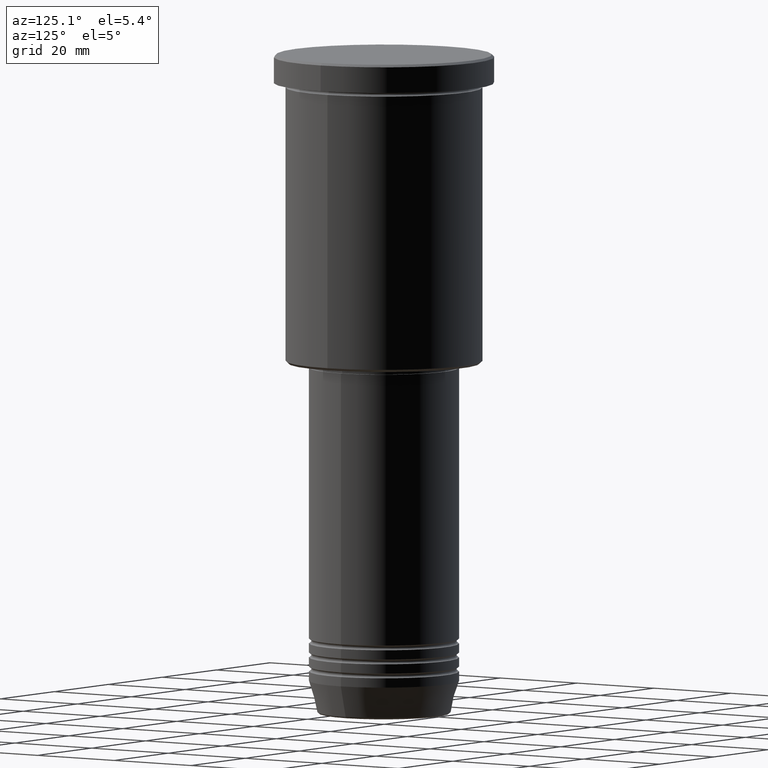
[diagram: clean part render]
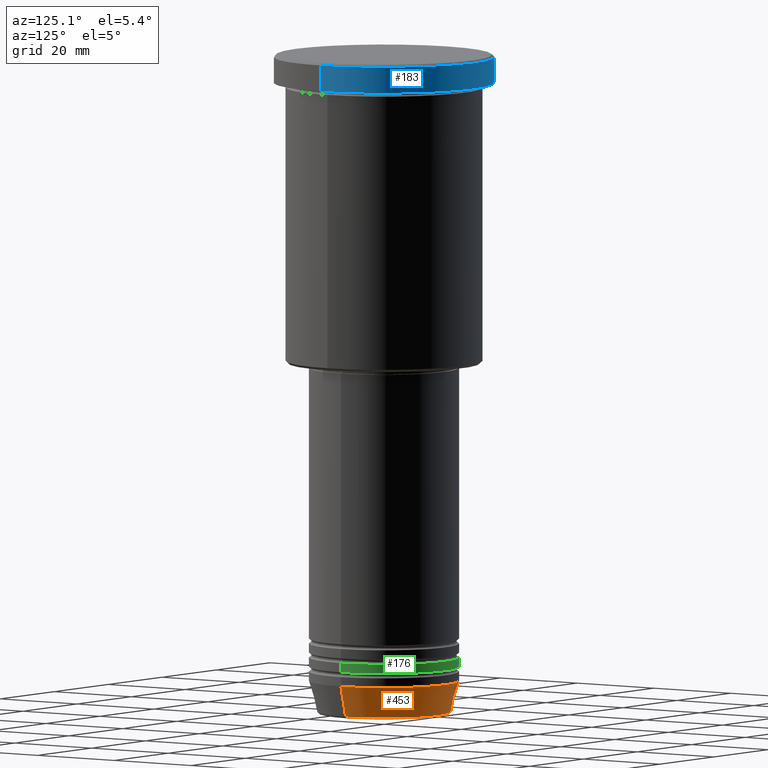
[diagram: same view with three faces highlighted in distinct colors, each labeled with its STEP entity id]
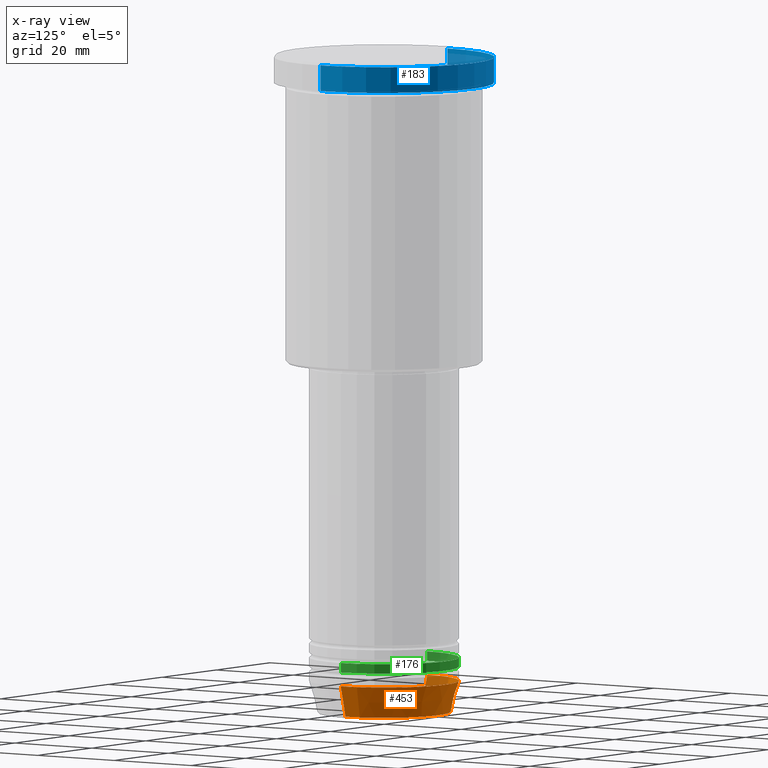
[diagram: x-ray of the same camera — body ghosted, the three highlighted faces saturated]
A machine part, auxiliary view with three faces highlighted in distinct colors.
The next image is the same camera in x-ray (body ghosted, the three faces saturated) — at least one of them is partly hidden behind the body in this view.
Their STEP definitions:

[orange] entity #453 — the highlighted conical surface has half-angle 15 deg.
#28 = CIRCLE ( 'NONE', #589, 16.00000000000000000 ) ;
#58 = CARTESIAN_POINT ( 'NONE',  ( 0.000000000000000000, 0.000000000000000000, -140.6294095225512706 ) ) ;
#82 = DIRECTION ( 'NONE',  ( -0.000000000000000000, -0.000000000000000000, 1.000000000000000000 ) ) ;
#123 = EDGE_CURVE ( 'NONE', #1125, #992, #491, .T. ) ;
#228 = DIRECTION ( 'NONE',  ( 0.2588190451025213501, 0.000000000000000000, 0.9659258262890680902 ) ) ;
#236 = DIRECTION ( 'NONE',  ( 1.000000000000000000, 0.000000000000000000, 0.000000000000000000 ) ) ;
#259 = ORIENTED_EDGE ( 'NONE', *, *, #123, .T. ) ;
#298 = DIRECTION ( 'NONE',  ( 1.000000000000000000, 0.000000000000000000, 0.000000000000000000 ) ) ;
#300 = FACE_OUTER_BOUND ( 'NONE', #1101, .T. ) ;
#312 = CARTESIAN_POINT ( 'NONE',  ( 16.00000000000000000, 0.000000000000000000, -134.0000000000000000 ) ) ;
#384 = CARTESIAN_POINT ( 'NONE',  ( 16.00000000000000000, 0.000000000000000000, -134.0000000000000000 ) ) ;
#453 = ADVANCED_FACE ( 'NONE', ( #300 ), #744, .T. ) ;
#491 = LINE ( 'NONE', #1052, #704 ) ;
#542 = ORIENTED_EDGE ( 'NONE', *, *, #771, .T. ) ;
#567 = VERTEX_POINT ( 'NONE', #917 ) ;
#576 = AXIS2_PLACEMENT_3D ( 'NONE', #845, #740, #822 ) ;
#586 = LINE ( 'NONE', #384, #708 ) ;
#589 = AXIS2_PLACEMENT_3D ( 'NONE', #1048, #950, #298 ) ;
#670 = EDGE_CURVE ( 'NONE', #567, #1131, #586, .T. ) ;
#704 = VECTOR ( 'NONE', #866, 1000.000000000000000 ) ;
#708 = VECTOR ( 'NONE', #228, 1000.000000000000000 ) ;
#740 = DIRECTION ( 'NONE',  ( -0.000000000000000000, -0.000000000000000000, 1.000000000000000000 ) ) ;
#744 = CONICAL_SURFACE ( 'NONE', #576, 16.00000000000000000, 0.2617993877991500740 ) ;
#771 = EDGE_CURVE ( 'NONE', #567, #1125, #1118, .T. ) ;
#822 = DIRECTION ( 'NONE',  ( 1.000000000000000000, 0.000000000000000000, 0.000000000000000000 ) ) ;
#845 = CARTESIAN_POINT ( 'NONE',  ( 0.000000000000000000, 0.000000000000000000, -134.0000000000000000 ) ) ;
#866 = DIRECTION ( 'NONE',  ( -0.2588190451025213501, 3.169619151431772337E-17, 0.9659258262890680902 ) ) ;
#917 = CARTESIAN_POINT ( 'NONE',  ( 14.22365507213718772, 0.000000000000000000, -140.6294095225512706 ) ) ;
#933 = ORIENTED_EDGE ( 'NONE', *, *, #1161, .F. ) ;
#944 = CARTESIAN_POINT ( 'NONE',  ( -14.22365507213718772, 1.850665122131323337E-15, -140.6294095225512706 ) ) ;
#950 = DIRECTION ( 'NONE',  ( -0.000000000000000000, -0.000000000000000000, 1.000000000000000000 ) ) ;
#987 = ORIENTED_EDGE ( 'NONE', *, *, #670, .F. ) ;
#992 = VERTEX_POINT ( 'NONE', #1098 ) ;
#1048 = CARTESIAN_POINT ( 'NONE',  ( 0.000000000000000000, 0.000000000000000000, -134.0000000000000000 ) ) ;
#1052 = CARTESIAN_POINT ( 'NONE',  ( -16.00000000000000000, 1.959434878635765131E-15, -134.0000000000000000 ) ) ;
#1098 = CARTESIAN_POINT ( 'NONE',  ( -16.00000000000000000, 1.959434878635765131E-15, -134.0000000000000000 ) ) ;
#1101 = EDGE_LOOP ( 'NONE', ( #542, #259, #933, #987 ) ) ;
#1118 = CIRCLE ( 'NONE', #1137, 14.22365507213718772 ) ;
#1125 = VERTEX_POINT ( 'NONE', #944 ) ;
#1131 = VERTEX_POINT ( 'NONE', #312 ) ;
#1137 = AXIS2_PLACEMENT_3D ( 'NONE', #58, #82, #236 ) ;
#1161 = EDGE_CURVE ( 'NONE', #1131, #992, #28, .T. ) ;

[blue] entity #183 — the highlighted cylindrical surface (partial cylindrical patch) has radius 23.5 mm, axis along (-0, -0, 1).
#14 = EDGE_CURVE ( 'NONE', #50, #972, #762, .T. ) ;
#26 = DIRECTION ( 'NONE',  ( 1.000000000000000000, 0.000000000000000000, 0.000000000000000000 ) ) ;
#50 = VERTEX_POINT ( 'NONE', #797 ) ;
#138 = LINE ( 'NONE', #777, #479 ) ;
#183 = ADVANCED_FACE ( 'NONE', ( #753 ), #657, .T. ) ;
#188 = CARTESIAN_POINT ( 'NONE',  ( 23.50000000000000000, 0.000000000000000000, 0.000000000000000000 ) ) ;
#243 = DIRECTION ( 'NONE',  ( 1.000000000000000000, 0.000000000000000000, 0.000000000000000000 ) ) ;
#280 = EDGE_CURVE ( 'NONE', #1090, #50, #138, .T. ) ;
#309 = VECTOR ( 'NONE', #724, 1000.000000000000000 ) ;
#353 = CARTESIAN_POINT ( 'NONE',  ( 23.50000000000000000, 0.000000000000000000, -0.4999999999999726885 ) ) ;
#382 = ORIENTED_EDGE ( 'NONE', *, *, #280, .T. ) ;
#468 = DIRECTION ( 'NONE',  ( -0.000000000000000000, -0.000000000000000000, 1.000000000000000000 ) ) ;
#471 = LINE ( 'NONE', #188, #309 ) ;
#479 = VECTOR ( 'NONE', #503, 1000.000000000000000 ) ;
#494 = AXIS2_PLACEMENT_3D ( 'NONE', #679, #1079, #243 ) ;
#501 = EDGE_CURVE ( 'NONE', #828, #1090, #516, .T. ) ;
#503 = DIRECTION ( 'NONE',  ( -0.000000000000000000, -0.000000000000000000, 1.000000000000000000 ) ) ;
#516 = CIRCLE ( 'NONE', #686, 23.50000000000000000 ) ;
#550 = EDGE_CURVE ( 'NONE', #828, #972, #471, .T. ) ;
#599 = CARTESIAN_POINT ( 'NONE',  ( 23.50000000000000000, 0.000000000000000000, -5.999999999999994671 ) ) ;
#642 = CARTESIAN_POINT ( 'NONE',  ( 0.000000000000000000, 0.000000000000000000, 0.000000000000000000 ) ) ;
#657 = CYLINDRICAL_SURFACE ( 'NONE', #1021, 23.50000000000000000 ) ;
#662 = DIRECTION ( 'NONE',  ( -0.000000000000000000, -0.000000000000000000, 1.000000000000000000 ) ) ;
#679 = CARTESIAN_POINT ( 'NONE',  ( 0.000000000000000000, 0.000000000000000000, -0.4999999999999726885 ) ) ;
#686 = AXIS2_PLACEMENT_3D ( 'NONE', #1117, #468, #26 ) ;
#724 = DIRECTION ( 'NONE',  ( -0.000000000000000000, -0.000000000000000000, 1.000000000000000000 ) ) ;
#753 = FACE_OUTER_BOUND ( 'NONE', #1073, .T. ) ;
#762 = CIRCLE ( 'NONE', #494, 23.50000000000000000 ) ;
#777 = CARTESIAN_POINT ( 'NONE',  ( -23.50000000000000000, 2.877919977996280320E-15, 0.000000000000000000 ) ) ;
#797 = CARTESIAN_POINT ( 'NONE',  ( -23.50000000000000000, 2.877919977996280320E-15, -0.4999999999999726885 ) ) ;
#828 = VERTEX_POINT ( 'NONE', #599 ) ;
#888 = DIRECTION ( 'NONE',  ( 1.000000000000000000, 0.000000000000000000, 0.000000000000000000 ) ) ;
#929 = ORIENTED_EDGE ( 'NONE', *, *, #14, .T. ) ;
#972 = VERTEX_POINT ( 'NONE', #353 ) ;
#1021 = AXIS2_PLACEMENT_3D ( 'NONE', #642, #662, #888 ) ;
#1073 = EDGE_LOOP ( 'NONE', ( #1077, #382, #929, #1089 ) ) ;
#1077 = ORIENTED_EDGE ( 'NONE', *, *, #501, .T. ) ;
#1079 = DIRECTION ( 'NONE',  ( 0.000000000000000000, 0.000000000000000000, -1.000000000000000000 ) ) ;
#1089 = ORIENTED_EDGE ( 'NONE', *, *, #550, .F. ) ;
#1090 = VERTEX_POINT ( 'NONE', #1122 ) ;
#1117 = CARTESIAN_POINT ( 'NONE',  ( 0.000000000000000000, 0.000000000000000000, -5.999999999999994671 ) ) ;
#1122 = CARTESIAN_POINT ( 'NONE',  ( -23.50000000000000000, 2.877919977996280320E-15, -5.999999999999994671 ) ) ;

[green] entity #176 — the highlighted cylindrical surface (partial cylindrical patch) has radius 16 mm, axis along (-0, -0, 1).
#21 = VECTOR ( 'NONE', #734, 1000.000000000000000 ) ;
#34 = CARTESIAN_POINT ( 'NONE',  ( 0.000000000000000000, 0.000000000000000000, -130.9999999999999716 ) ) ;
#44 = CARTESIAN_POINT ( 'NONE',  ( 16.00000000000000000, 0.000000000000000000, -128.9999999999999716 ) ) ;
#72 = CARTESIAN_POINT ( 'NONE',  ( 16.00000000000000000, 0.000000000000000000, -130.9999999999999716 ) ) ;
#115 = CIRCLE ( 'NONE', #540, 16.00000000000000000 ) ;
#119 = VECTOR ( 'NONE', #865, 1000.000000000000000 ) ;
#130 = LINE ( 'NONE', #499, #119 ) ;
#176 = ADVANCED_FACE ( 'NONE', ( #961 ), #493, .T. ) ;
#301 = VERTEX_POINT ( 'NONE', #1145 ) ;
#308 = AXIS2_PLACEMENT_3D ( 'NONE', #817, #896, #378 ) ;
#347 = ORIENTED_EDGE ( 'NONE', *, *, #1143, .T. ) ;
#368 = EDGE_CURVE ( 'NONE', #716, #543, #593, .T. ) ;
#378 = DIRECTION ( 'NONE',  ( 1.000000000000000000, 0.000000000000000000, 0.000000000000000000 ) ) ;
#386 = DIRECTION ( 'NONE',  ( -0.000000000000000000, -0.000000000000000000, 1.000000000000000000 ) ) ;
#419 = ORIENTED_EDGE ( 'NONE', *, *, #368, .F. ) ;
#470 = CARTESIAN_POINT ( 'NONE',  ( 16.00000000000000000, 0.000000000000000000, 0.000000000000000000 ) ) ;
#493 = CYLINDRICAL_SURFACE ( 'NONE', #308, 16.00000000000000000 ) ;
#499 = CARTESIAN_POINT ( 'NONE',  ( -16.00000000000000000, 1.959434878635765131E-15, 0.000000000000000000 ) ) ;
#537 = CARTESIAN_POINT ( 'NONE',  ( 0.000000000000000000, 0.000000000000000000, -128.9999999999999716 ) ) ;
#540 = AXIS2_PLACEMENT_3D ( 'NONE', #34, #386, #1132 ) ;
#543 = VERTEX_POINT ( 'NONE', #1015 ) ;
#593 = CIRCLE ( 'NONE', #981, 16.00000000000000000 ) ;
#690 = EDGE_CURVE ( 'NONE', #301, #543, #130, .T. ) ;
#710 = EDGE_LOOP ( 'NONE', ( #347, #811, #419, #862 ) ) ;
#716 = VERTEX_POINT ( 'NONE', #44 ) ;
#734 = DIRECTION ( 'NONE',  ( -0.000000000000000000, -0.000000000000000000, 1.000000000000000000 ) ) ;
#811 = ORIENTED_EDGE ( 'NONE', *, *, #690, .T. ) ;
#817 = CARTESIAN_POINT ( 'NONE',  ( 0.000000000000000000, 0.000000000000000000, 0.000000000000000000 ) ) ;
#862 = ORIENTED_EDGE ( 'NONE', *, *, #1022, .F. ) ;
#865 = DIRECTION ( 'NONE',  ( -0.000000000000000000, -0.000000000000000000, 1.000000000000000000 ) ) ;
#896 = DIRECTION ( 'NONE',  ( -0.000000000000000000, -0.000000000000000000, 1.000000000000000000 ) ) ;
#898 = VERTEX_POINT ( 'NONE', #72 ) ;
#961 = FACE_OUTER_BOUND ( 'NONE', #710, .T. ) ;
#981 = AXIS2_PLACEMENT_3D ( 'NONE', #537, #985, #1164 ) ;
#985 = DIRECTION ( 'NONE',  ( -0.000000000000000000, -0.000000000000000000, 1.000000000000000000 ) ) ;
#1015 = CARTESIAN_POINT ( 'NONE',  ( -16.00000000000000000, 1.959434878635765131E-15, -128.9999999999999716 ) ) ;
#1019 = LINE ( 'NONE', #470, #21 ) ;
#1022 = EDGE_CURVE ( 'NONE', #898, #716, #1019, .T. ) ;
#1132 = DIRECTION ( 'NONE',  ( 1.000000000000000000, 0.000000000000000000, 0.000000000000000000 ) ) ;
#1143 = EDGE_CURVE ( 'NONE', #898, #301, #115, .T. ) ;
#1145 = CARTESIAN_POINT ( 'NONE',  ( -16.00000000000000000, 1.959434878635765131E-15, -130.9999999999999716 ) ) ;
#1164 = DIRECTION ( 'NONE',  ( 1.000000000000000000, 0.000000000000000000, 0.000000000000000000 ) ) ;